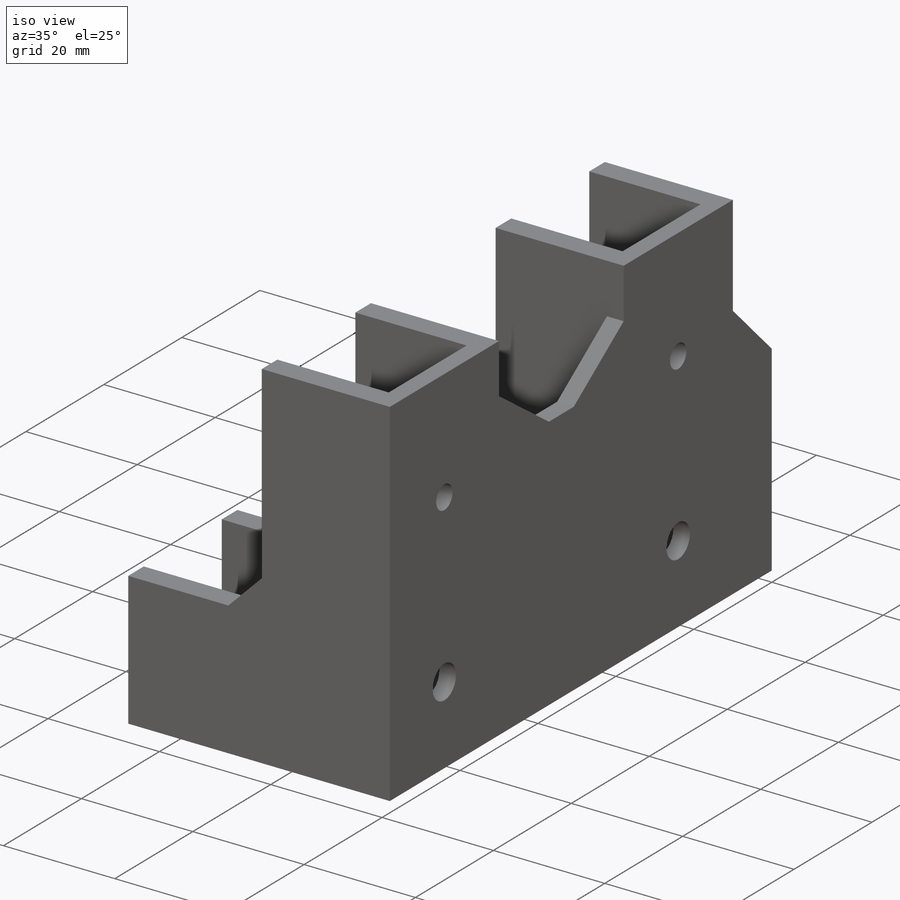
[diagram: iso view]
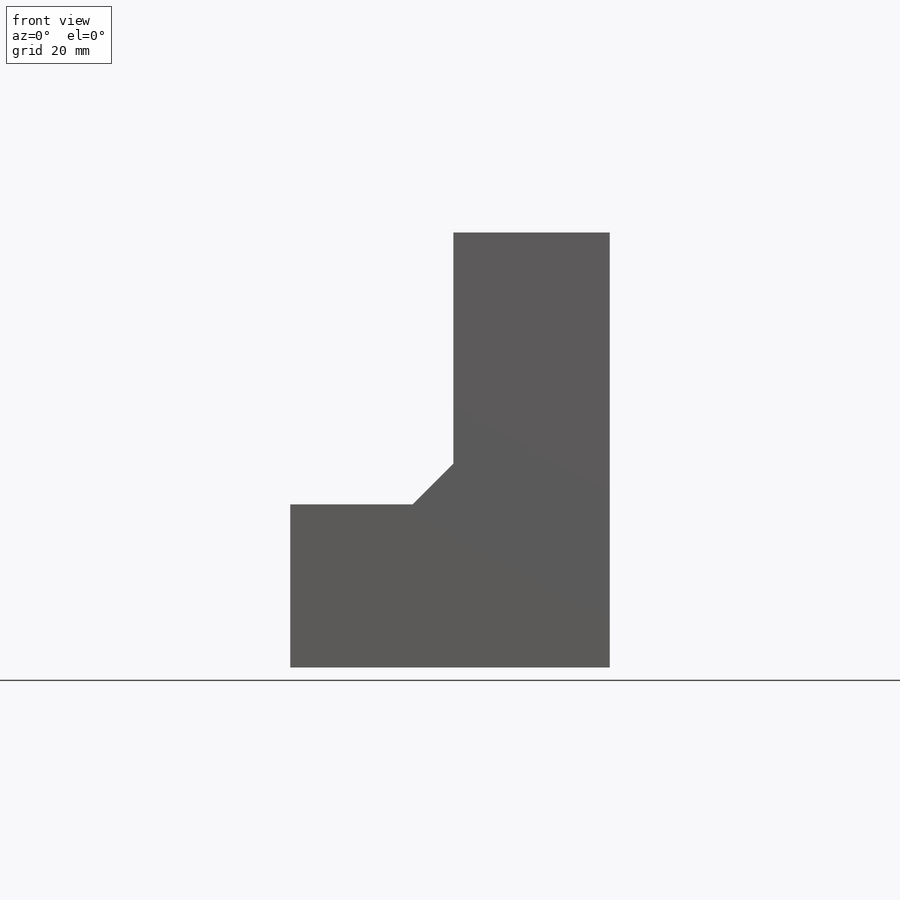
[diagram: front view]
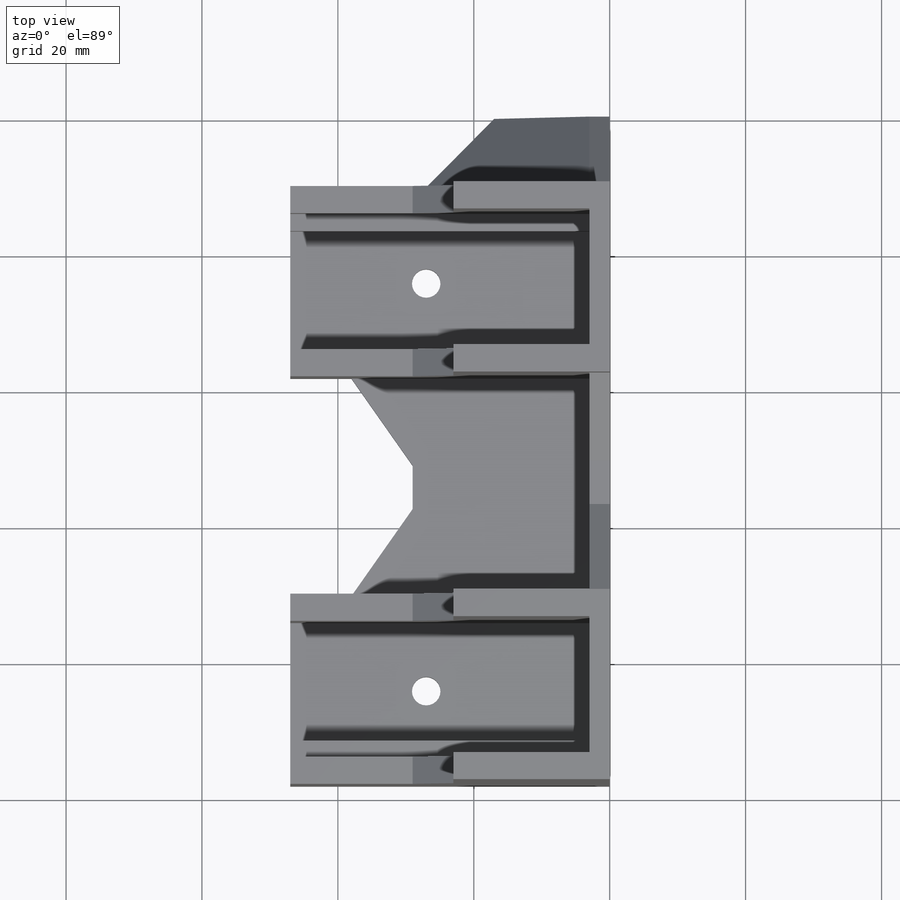
[diagram: top view]
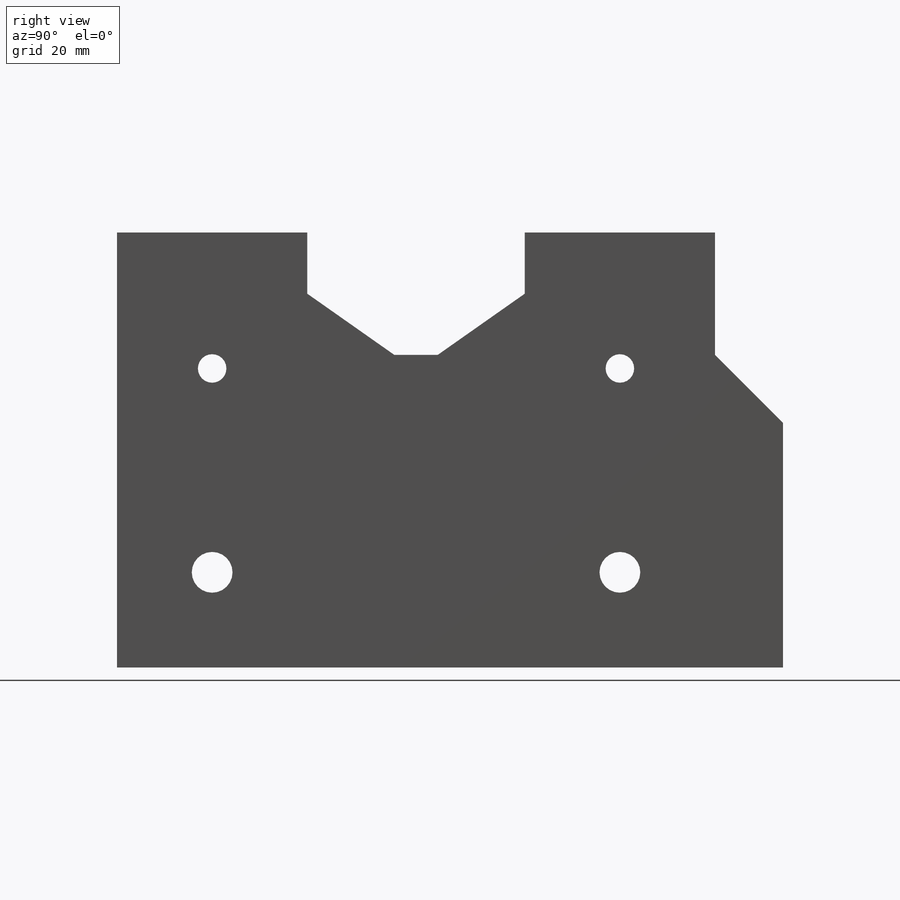
[diagram: right view]
SOLIDWORKS PART (.sldprt)
format: sldprt  version: not decoded by parser v0  size: 380,928 bytes
history: native  units: mm
features: sketch x7, cut_extrude x4, plane x3, extrude x3, chamfer x2, material x1 (+9 scaffold rows collapsed)
feature tree (29):
  scaffold x9  (default folders/planes/origin — collapsed)
  material  "ABS PC"
  plane  "Plan de face"
  plane  "Plan de dessus"
  plane  "Plan de droite"
  sketch  "Esquisse3"  dims[c1.D1=28.0mm c1.D2=28.0mm c1.D3=6.4mm c1.D4=64.0mm c2.D4=90.0deg c3.D4=64.0mm c4.D4=90.0deg c5.D4=64.0mm c6.D4=90.0deg c7.D4=64.0mm c8.D4=90.0deg c9.D4=64.0mm c10.D4=90.0deg c11.D4=64.0mm c11.D5=98.0mm c11.D6=36.0mm c11.D7=~14.142136mm c11.D8=18.0mm c11.D9=9.0mm c11.D10=9.0mm c11.D11=18.0mm c11.D12=~1.698783mm]
  extrude  "Boss.-Extru.1"  Depth=3mm
  sketch  "Esquisse4"  dims[c1.D1=4.0mm c1.D2=4.0mm c1.D3=4.0mm c1.D4=4.0mm c1.D5=6.4mm c2.D5=90.0deg c3.D5=6.0mm c3.D6=6.0mm c4.D6=90.0deg c4.D7=4.0mm c4.D8=4.0mm c4.D9=20.0mm c5.D6=20.0mm c5.D10=7.0mm]
  extrude  "Boss.-Extru.2"  Depth=44mm
  sketch  "Esquisse5"  dims[c1.D1=24.0mm c1.D2=40.0mm c1.D3=18.0mm c1.D4=34.0mm c1.D5=~8.485281mm c2.D1=20.0mm]
  cut_extrude  "Enlèv. mat.-Extru.1"  [1 undecoded]
  sketch  "Esquisse6"  dims[c1.D1=32.0mm c1.D2=9.0mm c1.D3=9.0mm c1.D4=~15.09437mm c1.D5=6.4mm c2.D4=~33.262136mm c2.D1=18.0mm]
  cut_extrude  "Enlèv. mat.-Extru.2"  [1 undecoded]
  sketch  "Esquisse7"  dims[c1.D1=3.0mm c1.D2=3.0mm c1.D3=2.1mm c1.D4=4.2mm c2.D3=~6.740101mm c2.D1=6.0mm c3.D3=6.0mm c3.D2=6.0mm c3.D1=~41.151147mm c4.D2=10.0mm c4.D3=20.0mm]
  cut_extrude  "Enlèv. mat.-Extru.4"  [1 undecoded]
  sketch  "Esquisse8"  dims[c1.D1=10.0mm c1.D2=10.0mm c1.D3=18.0mm c2.D2=10.0mm c2.D3=20.0mm c2.D4=20.0mm]
  cut_extrude  "Enlèv. mat.-Extru.5"  [1 undecoded]
  sketch  "Esquisse9"  dims[D1=0.0mm]
  extrude  "Boss.-Extru.3"  Depth=24mm
  chamfer  "Chanfrein1"  Distance=24mm Angle=45deg
  chamfer  "Chanfrein2"  Distance=10mm Angle=45deg
decode coverage: 12 of 16 modeling features carry decoded parameters
note: ~ marks probable driven/reference dimensions
note: 4 parameter values undecoded
summary: no parameter record found for 4 features
note: suppression state not decoded; provenance and decode notes live in map.json
